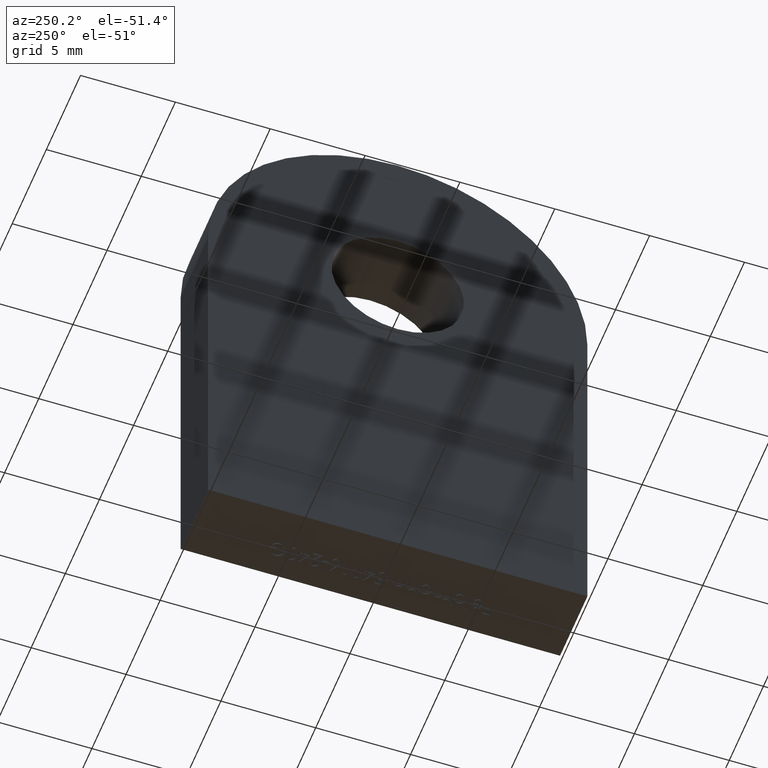
[diagram: clean part render]
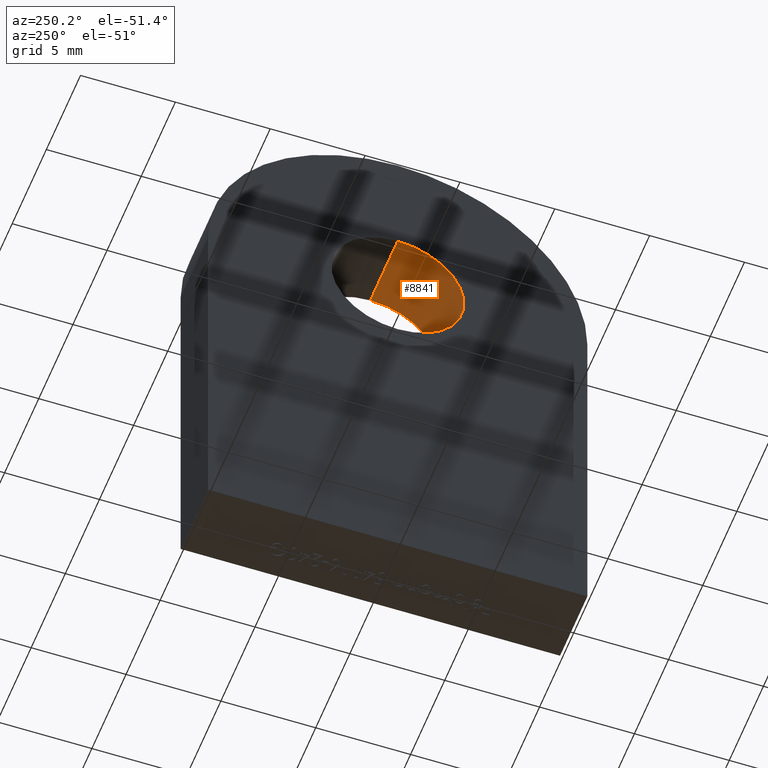
[diagram: same view with one face highlighted and labeled with its STEP entity id]
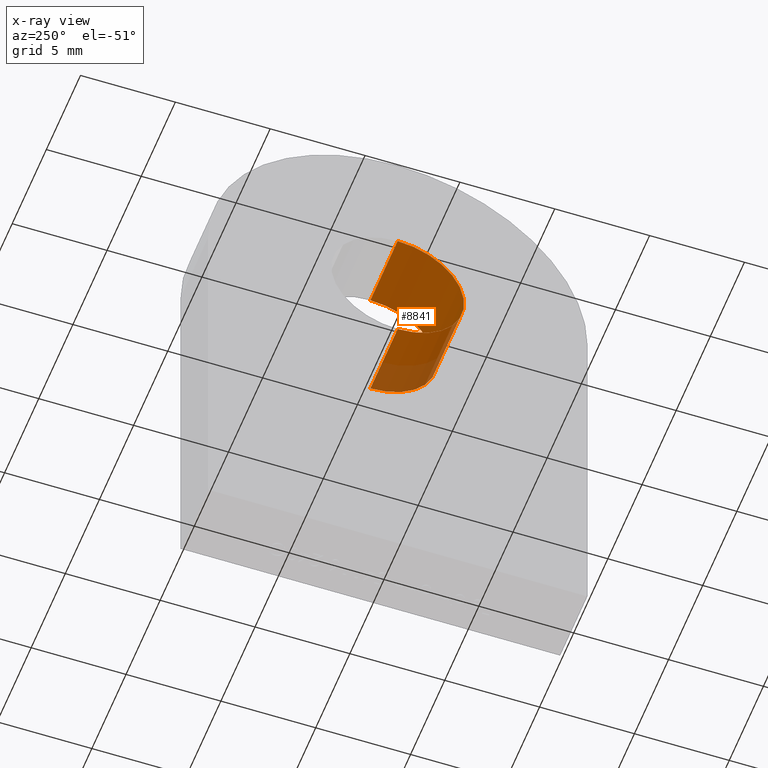
[diagram: x-ray of the same camera — body ghosted, the highlighted face saturated]
A machine part, auxiliary view. The second image highlights one B-rep face of the part: STEP entity #8841.
The next image is the same camera in x-ray: the body ghosted, the highlighted face saturated — about 17% of this face is hidden behind the body in this view.
In plain terms, the highlighted cylindrical surface (partial cylindrical patch) has radius 3.5 mm, axis along (1, -0, -0).
Its self-contained STEP definition (entity closure, byte-faithful):
#160 = LINE ( 'NONE', #10122, #11157 ) ;
#634 = CARTESIAN_POINT ( 'NONE',  ( -2.000000000000000000, 0.0000000000000000000, 16.99999999999999600 ) ) ;
#743 = LINE ( 'NONE', #7247, #5644 ) ;
#794 = CIRCLE ( 'NONE', #7937, 3.499999999999999600 ) ;
#865 = DIRECTION ( 'NONE',  ( 0.0000000000000000000, 0.0000000000000000000, -1.000000000000000000 ) ) ;
#1276 = DIRECTION ( 'NONE',  ( 1.000000000000000000, 0.0000000000000000000, 0.0000000000000000000 ) ) ;
#1726 = FACE_OUTER_BOUND ( 'NONE', #9584, .T. ) ;
#1891 = AXIS2_PLACEMENT_3D ( 'NONE', #7963, #6228, #7169 ) ;
#1925 = CARTESIAN_POINT ( 'NONE',  ( 2.000000000000000000, 0.0000000000000000000, 16.99999999999999600 ) ) ;
#2470 = ORIENTED_EDGE ( 'NONE', *, *, #12167, .F. ) ;
#2763 = CARTESIAN_POINT ( 'NONE',  ( -2.000000000000000000, 0.0000000000000000000, 20.49999999999999600 ) ) ;
#3163 = CARTESIAN_POINT ( 'NONE',  ( 2.000000000000000000, 0.0000000000000000000, 20.49999999999999600 ) ) ;
#3267 = VERTEX_POINT ( 'NONE', #634 ) ;
#3276 = CIRCLE ( 'NONE', #1891, 3.499999999999999600 ) ;
#3517 = CYLINDRICAL_SURFACE ( 'NONE', #11422, 3.499999999999999600 ) ;
#3639 = DIRECTION ( 'NONE',  ( 1.000000000000000000, -0.0000000000000000000, -0.0000000000000000000 ) ) ;
#4362 = CARTESIAN_POINT ( 'NONE',  ( 2.000000000000000000, 4.286263797015737100E-016, 23.99999999999999600 ) ) ;
#5270 = VERTEX_POINT ( 'NONE', #1925 ) ;
#5644 = VECTOR ( 'NONE', #12107, 1000.000000000000000 ) ;
#5892 = EDGE_CURVE ( 'NONE', #3267, #5270, #743, .T. ) ;
#6228 = DIRECTION ( 'NONE',  ( 1.000000000000000000, 0.0000000000000000000, 0.0000000000000000000 ) ) ;
#6870 = ORIENTED_EDGE ( 'NONE', *, *, #5892, .F. ) ;
#7169 = DIRECTION ( 'NONE',  ( 0.0000000000000000000, 0.0000000000000000000, -1.000000000000000000 ) ) ;
#7247 = CARTESIAN_POINT ( 'NONE',  ( -2.000000000000000000, 0.0000000000000000000, 16.99999999999999600 ) ) ;
#7902 = DIRECTION ( 'NONE',  ( 0.0000000000000000000, 0.0000000000000000000, -1.000000000000000000 ) ) ;
#7937 = AXIS2_PLACEMENT_3D ( 'NONE', #3163, #1276, #7902 ) ;
#7963 = CARTESIAN_POINT ( 'NONE',  ( -2.000000000000000000, 0.0000000000000000000, 20.49999999999999600 ) ) ;
#8512 = VERTEX_POINT ( 'NONE', #4362 ) ;
#8705 = VERTEX_POINT ( 'NONE', #9427 ) ;
#8841 = ADVANCED_FACE ( 'NONE', ( #1726 ), #3517, .F. ) ;
#8863 = ORIENTED_EDGE ( 'NONE', *, *, #11884, .T. ) ;
#9427 = CARTESIAN_POINT ( 'NONE',  ( -2.000000000000000000, 4.286263797015737100E-016, 23.99999999999999600 ) ) ;
#9438 = ORIENTED_EDGE ( 'NONE', *, *, #10544, .T. ) ;
#9584 = EDGE_LOOP ( 'NONE', ( #2470, #8863, #9438, #6870 ) ) ;
#10122 = CARTESIAN_POINT ( 'NONE',  ( -2.000000000000000000, 4.286263797015736600E-016, 23.99999999999999600 ) ) ;
#10544 = EDGE_CURVE ( 'NONE', #8512, #5270, #794, .T. ) ;
#11157 = VECTOR ( 'NONE', #11893, 1000.000000000000000 ) ;
#11422 = AXIS2_PLACEMENT_3D ( 'NONE', #2763, #3639, #865 ) ;
#11884 = EDGE_CURVE ( 'NONE', #8705, #8512, #160, .T. ) ;
#11893 = DIRECTION ( 'NONE',  ( 1.000000000000000000, -0.0000000000000000000, -0.0000000000000000000 ) ) ;
#12107 = DIRECTION ( 'NONE',  ( 1.000000000000000000, -0.0000000000000000000, -0.0000000000000000000 ) ) ;
#12167 = EDGE_CURVE ( 'NONE', #8705, #3267, #3276, .T. ) ;